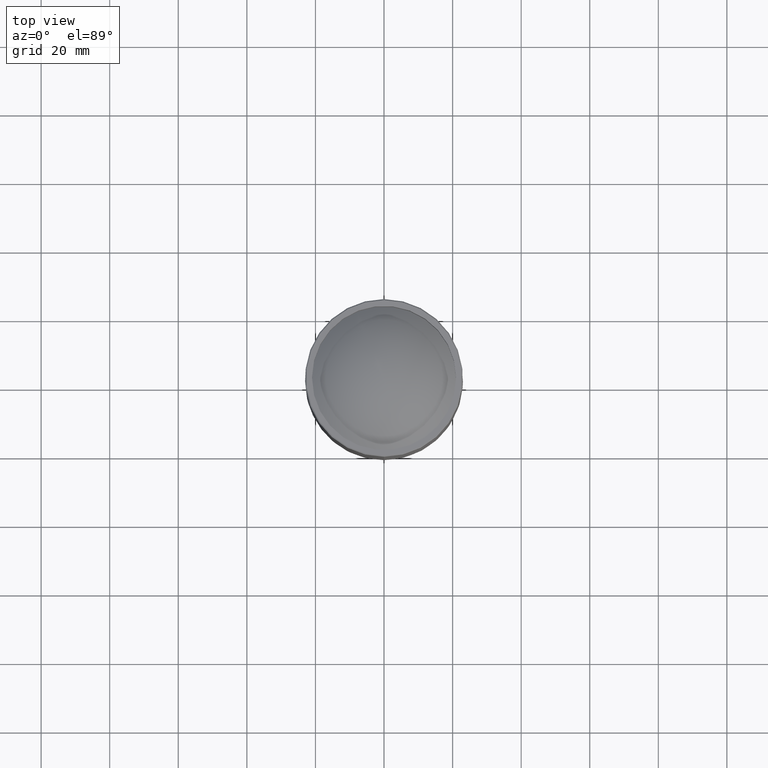
[diagram: clean part render]
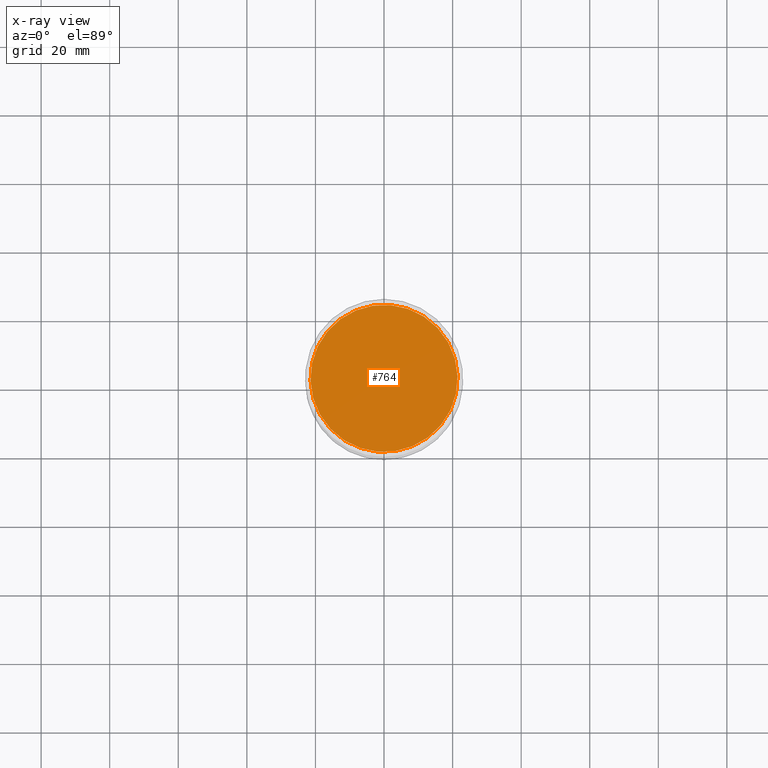
[diagram: x-ray — body ghosted, one internal face saturated and labeled with its STEP entity id]
A machine part, top view, then the same camera in x-ray: the body is ghosted and one INTERNAL B-rep face — a face not visible from any outside direction — is saturated and labeled: STEP entity #764.
In plain terms, the highlighted planar face has unit normal (-0, 0, 1).
Its self-contained STEP definition (entity closure, byte-faithful):
#58 = EDGE_LOOP ( 'NONE', ( #465 ) ) ;
#66 = CARTESIAN_POINT ( 'NONE',  ( -2.775557561562891351E-14, 6.938893903907228378E-15, -576.0000000000001137 ) ) ;
#98 = FACE_OUTER_BOUND ( 'NONE', #58, .T. ) ;
#152 = CIRCLE ( 'NONE', #558, 21.45211006975307555 ) ;
#229 = CARTESIAN_POINT ( 'NONE',  ( -7.311375404722653570, -63.84507486142585009, -576.0000000000001137 ) ) ;
#246 = VERTEX_POINT ( 'NONE', #437 ) ;
#437 = CARTESIAN_POINT ( 'NONE',  ( 8.217209483082285715, -19.81591518845251798, -576.0000000000001137 ) ) ;
#440 = AXIS2_PLACEMENT_3D ( 'NONE', #229, #497, #757 ) ;
#465 = ORIENTED_EDGE ( 'NONE', *, *, #602, .T. ) ;
#497 = DIRECTION ( 'NONE',  ( -1.848892746611746419E-32, 1.318609258053556101E-16, 1.000000000000000000 ) ) ;
#558 = AXIS2_PLACEMENT_3D ( 'NONE', #66, #586, #608 ) ;
#586 = DIRECTION ( 'NONE',  ( -1.232595164407830946E-32, -1.318609258053555361E-16, -1.000000000000000000 ) ) ;
#602 = EDGE_CURVE ( 'NONE', #246, #246, #152, .T. ) ;
#608 = DIRECTION ( 'NONE',  ( 0.3830490080632379390, -0.9237280213470682178, 0.000000000000000000 ) ) ;
#626 = PLANE ( 'NONE',  #440 ) ;
#757 = DIRECTION ( 'NONE',  ( 0.3830490080632378835, -0.9237280213470681067, 1.218036320871736945E-16 ) ) ;
#764 = ADVANCED_FACE ( 'NONE', ( #98 ), #626, .F. ) ;